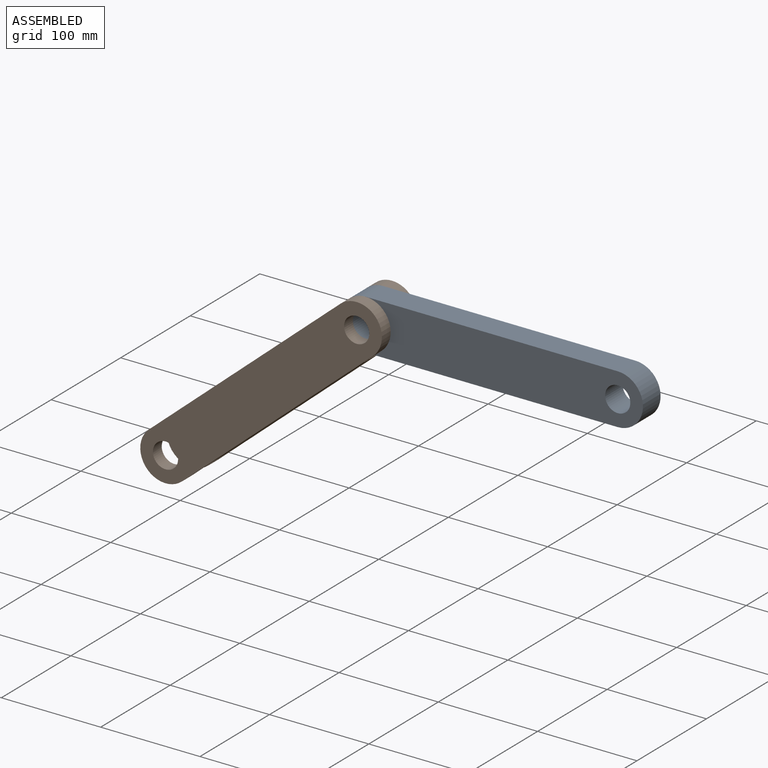
[diagram: assembled view]
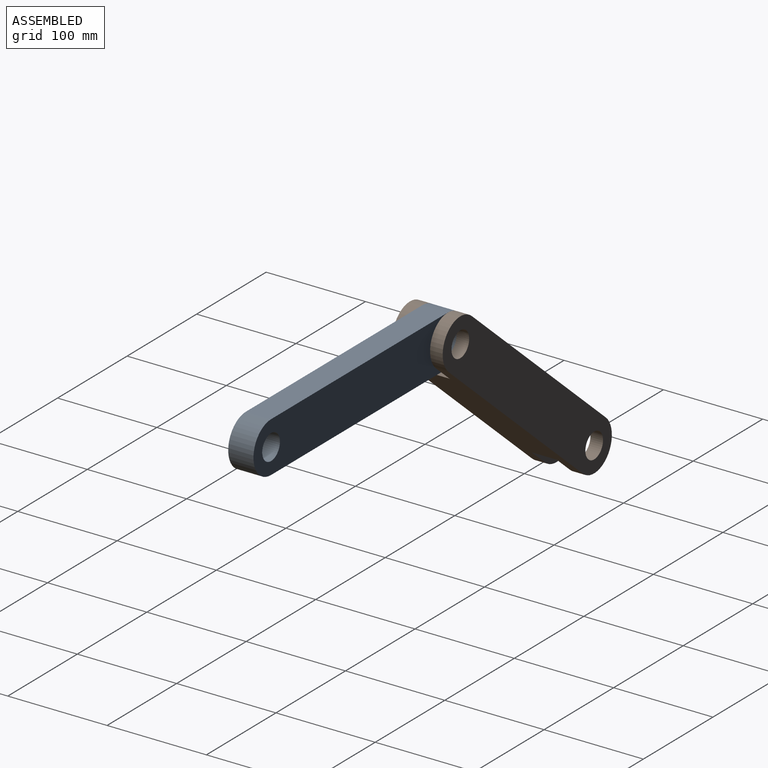
[diagram: assembled view, second angle]
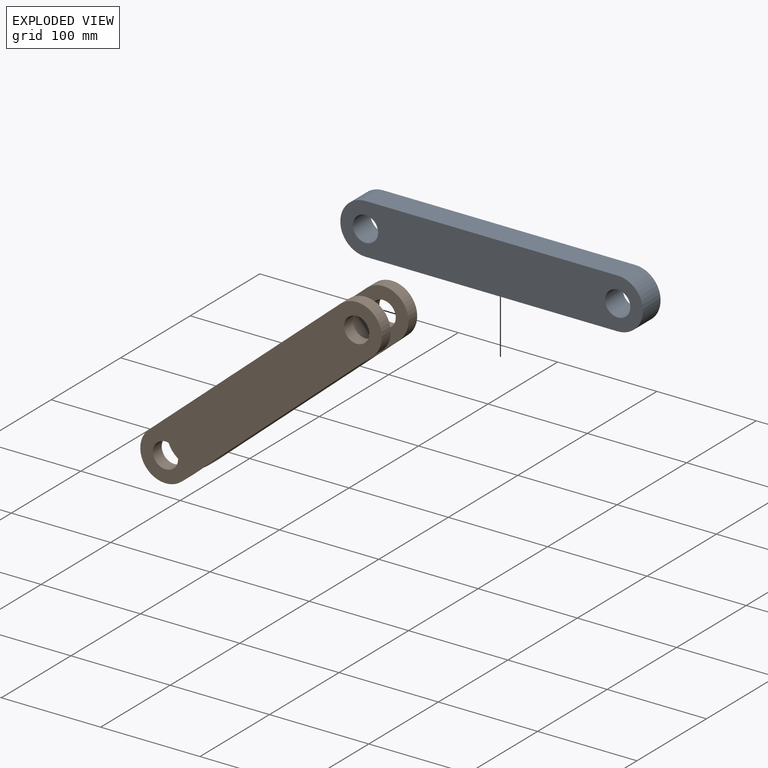
[diagram: exploded view]
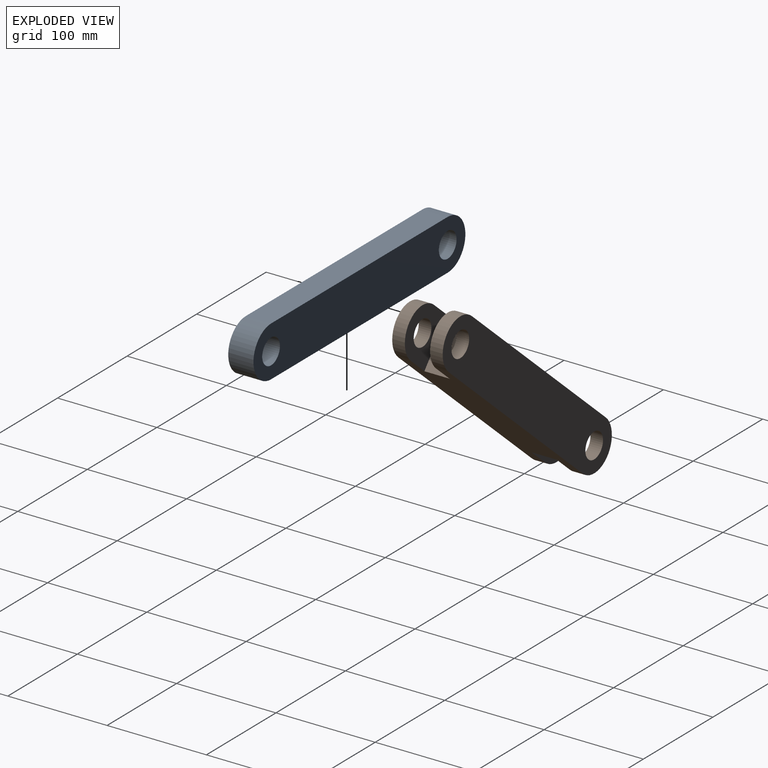
[diagram: exploded view, second angle]
ASSEMBLY  parts=2 mates=2
PART A: 8 faces, bbox 304.8x25.4x50.8 mm
  f0: plane 254x25.4mm, normal (0,0,-1), area 6451.6mm2, adj f1,f3,f4,f5
  f1: cylinder r=25.4mm len=50.8mm, axis (0,-1,0), area 2026.8mm2, adj f0,f2,f4,f5
  f2: plane 254x25.4mm, normal (0,0,1), area 6451.6mm2, adj f1,f3,f4,f5
  f3: cylinder r=25.4mm len=50.8mm, axis (0,-1,0), area 2026.8mm2, adj f0,f2,f4,f5
  f4: plane 304.8x50.8mm, normal (0,1,0), area 13916.6mm2, adj f0,f1,f2,f3,f6,f7
  f5: plane 304.8x50.8mm, normal (0,-1,0), area 13916.6mm2, adj f0,f1,f2,f3,f6,f7
  f6: cylinder r=12.7mm len=25.4mm, axis (0,-1,0), area 2026.8mm2, adj f4,f5
  f7: cylinder r=12.7mm len=25.4mm, axis (0,-1,0), area 2026.8mm2, adj f4,f5
PART B: 18 faces, bbox 304.8x50.8x50.8 mm
  f0: cylinder r=25.4mm len=50.8mm, axis (0,-1,0), area 1013.4mm2, adj f4,f6,f9,f17
  f1: cylinder r=25.4mm len=50.8mm, axis (0,-1,0), area 1013.4mm2, adj f4,f6,f8,f14
  f2: cylinder r=12.7mm len=25.4mm, axis (0,-1,0), area 1013.4mm2, adj f9,f17
  f3: cylinder r=12.7mm len=25.4mm, axis (0,-1,0), area 1013.4mm2, adj f8,f14
  f4: plane 254x50.8mm, normal (0,0,-1), area 11612.9mm2, adj f0,f1,f5,f7,f8,f9,f12,f13
  f5: cylinder r=25.4mm len=50.8mm, axis (0,-1,0), area 1013.4mm2, adj f4,f6,f8,f16
  f6: plane 254x50.8mm, normal (0,0,1), area 11612.9mm2, adj f0,f1,f5,f7,f8,f9,f12,f13
  f7: cylinder r=25.4mm len=50.8mm, axis (0,-1,0), area 1013.4mm2, adj f4,f6,f9,f13
  f8: plane 304.8x50.8mm, normal (0,1,0), area 13916.6mm2, adj f1,f3,f4,f5,f6,f10
  f9: plane 304.8x50.8mm, normal (0,-1,0), area 13916.6mm2, adj f0,f2,f4,f6,f7,f11
  f10: cylinder r=12.7mm len=25.4mm, axis (0,-1,0), area 1013.4mm2, adj f8,f16
  f11: cylinder r=12.7mm len=25.4mm, axis (0,-1,0), area 1013.4mm2, adj f9,f13
  f12: plane 50.8x25.4mm, normal (-1,0,0), area 1290.3mm2, adj f4,f6,f13,f14
  f13: plane 50.8x50.8mm, normal (0,1,0), area 1797mm2, adj f4,f6,f7,f11,f12
  f14: plane 50.8x50.8mm, normal (0,-1,0), area 1797mm2, adj f1,f3,f4,f6,f12
  f15: plane 50.8x25.4mm, normal (1,0,0), area 1290.3mm2, adj f4,f6,f16,f17
  f16: plane 50.8x50.8mm, normal (0,-1,0), area 1797mm2, adj f4,f5,f6,f10,f15
  f17: plane 50.8x50.8mm, normal (0,1,0), area 1797mm2, adj f0,f2,f4,f6,f15
PLACE A t=(-26.61,-81.07,49.53)mm fixed
PLACE B rot(axis=(0,-1,0),40.7deg) t=(-219.12,-93.77,-116.17)mm
MATE cylindrical A.f7 <-> B.f0  axis (0,-1,0) through (-26.61,-81.07,49.53)mm
MATE planar B.f17 <-> A.f5  axis (0,1,0) through (-28.92,-81.07,47.55)mm
